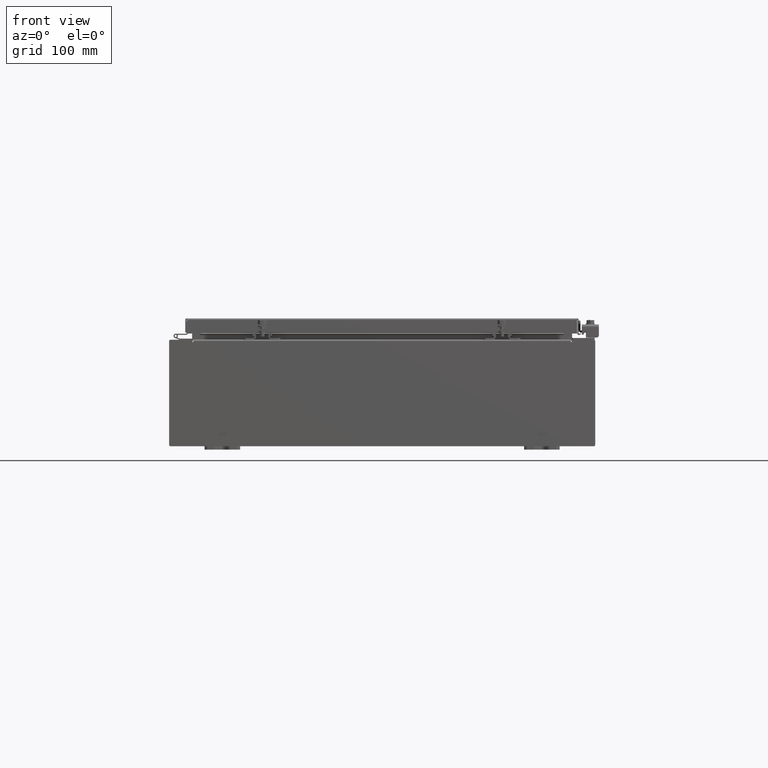
[diagram: clean part render]
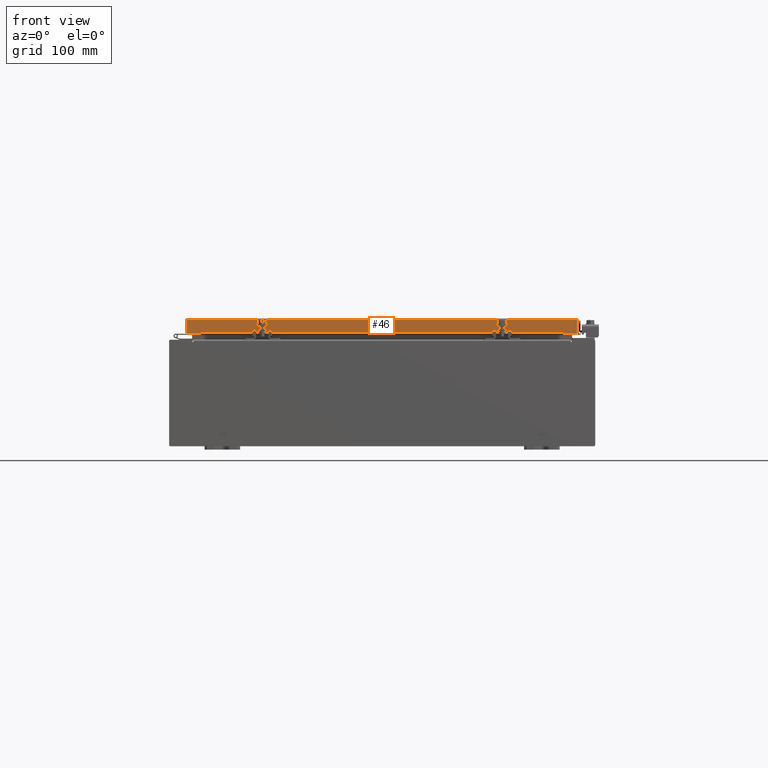
[diagram: same view with one face highlighted and labeled with its STEP entity id]
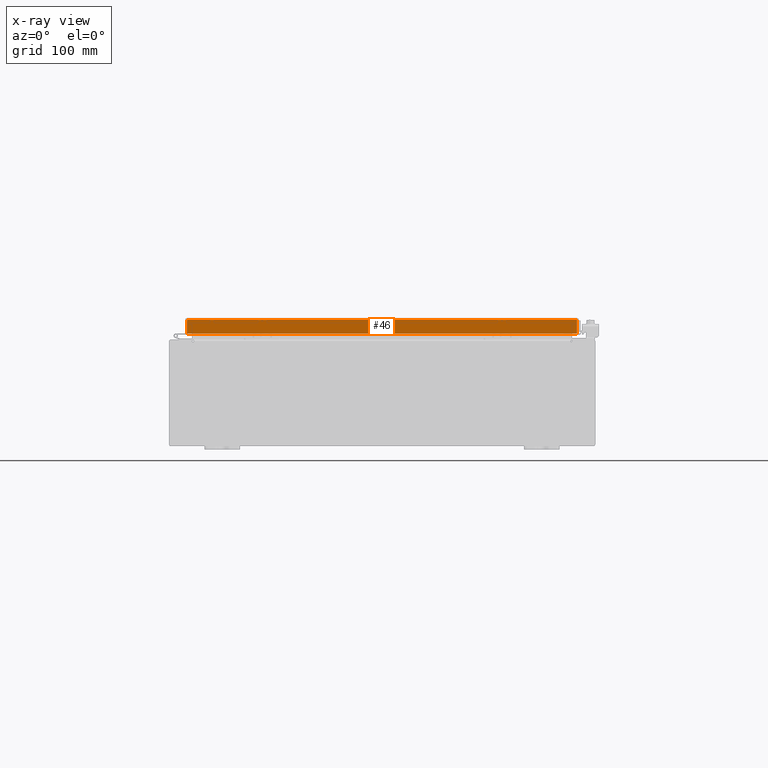
[diagram: x-ray of the same camera — body ghosted, the highlighted face saturated]
A machine part, front view. The second image highlights one B-rep face of the part: STEP entity #46.
The next image is the same camera in x-ray: the body ghosted, the highlighted face saturated — about 0% of this face is hidden behind the body in this view.
In plain terms, the highlighted planar face has unit normal (0, 1, -0).
Its self-contained STEP definition (entity closure, byte-faithful):
#46 = ADVANCED_FACE ( 'NONE', ( #12264 ), #22974, .F. ) ;
#2450 = VECTOR ( 'NONE', #29865, 39.37007874015748100 ) ;
#2663 = EDGE_CURVE ( 'NONE', #23337, #30360, #19361, .T. ) ;
#3619 = CARTESIAN_POINT ( 'NONE',  ( 11.07799999999999900, -14.09400000000000300, -0.8499999999999996400 ) ) ;
#3706 = EDGE_CURVE ( 'NONE', #23337, #24504, #10583, .T. ) ;
#4121 = VERTEX_POINT ( 'NONE', #35626 ) ;
#4392 = DIRECTION ( 'NONE',  ( 1.000000000000000000, -9.864047639155999200E-017, -9.196021172131615100E-046 ) ) ;
#4658 = CARTESIAN_POINT ( 'NONE',  ( -10.98915786437626700, -14.09399999999999900, -0.08770000000000224800 ) ) ;
#4875 = ORIENTED_EDGE ( 'NONE', *, *, #3706, .F. ) ;
#6161 = CARTESIAN_POINT ( 'NONE',  ( 10.98915786437626900, -14.09400000000000300, -0.8499999999999996400 ) ) ;
#6338 = VERTEX_POINT ( 'NONE', #18264 ) ;
#9230 = EDGE_CURVE ( 'NONE', #24504, #12584, #14075, .T. ) ;
#9518 = EDGE_CURVE ( 'NONE', #6338, #30360, #19532, .T. ) ;
#10038 = ORIENTED_EDGE ( 'NONE', *, *, #2663, .T. ) ;
#10583 = LINE ( 'NONE', #24837, #18389 ) ;
#11186 = DIRECTION ( 'NONE',  ( 0.0000000000000000000, -2.818880942772360100E-015, -1.000000000000000000 ) ) ;
#12264 = FACE_OUTER_BOUND ( 'NONE', #35199, .T. ) ;
#12584 = VERTEX_POINT ( 'NONE', #6161 ) ;
#12701 = ORIENTED_EDGE ( 'NONE', *, *, #23462, .F. ) ;
#12888 = CARTESIAN_POINT ( 'NONE',  ( 10.98915786437624400, -14.09400000000000100, -0.08770000000000224800 ) ) ;
#13148 = VECTOR ( 'NONE', #36268, 39.37007874015748100 ) ;
#13933 = DIRECTION ( 'NONE',  ( -1.000000000000000000, 9.864047639156033700E-017, 1.233005954894504400E-016 ) ) ;
#14075 = LINE ( 'NONE', #15751, #13148 ) ;
#15751 = CARTESIAN_POINT ( 'NONE',  ( 10.98915786437626900, -14.09400000000000100, -0.07469999999999978000 ) ) ;
#17237 = DIRECTION ( 'NONE',  ( 0.0000000000000000000, 2.818880942772360100E-015, 1.000000000000000000 ) ) ;
#18264 = CARTESIAN_POINT ( 'NONE',  ( -10.23915786437626700, -14.09399999999999900, -0.8500000000000012000 ) ) ;
#18389 = VECTOR ( 'NONE', #4392, 39.37007874015748100 ) ;
#18636 = VECTOR ( 'NONE', #13933, 39.37007874015748100 ) ;
#19361 = LINE ( 'NONE', #28745, #25319 ) ;
#19532 = LINE ( 'NONE', #34454, #18636 ) ;
#20974 = AXIS2_PLACEMENT_3D ( 'NONE', #25924, #34788, #17237 ) ;
#22682 = DIRECTION ( 'NONE',  ( -1.000000000000000000, 0.0000000000000000000, 0.0000000000000000000 ) ) ;
#22974 = PLANE ( 'NONE',  #20974 ) ;
#23337 = VERTEX_POINT ( 'NONE', #4658 ) ;
#23462 = EDGE_CURVE ( 'NONE', #4121, #6338, #28441, .T. ) ;
#24413 = ORIENTED_EDGE ( 'NONE', *, *, #29354, .F. ) ;
#24504 = VERTEX_POINT ( 'NONE', #12888 ) ;
#24837 = CARTESIAN_POINT ( 'NONE',  ( 11.07799999999999900, -14.09400000000000100, -0.08770000000000224800 ) ) ;
#25319 = VECTOR ( 'NONE', #11186, 39.37007874015748100 ) ;
#25777 = LINE ( 'NONE', #3619, #2450 ) ;
#25924 = CARTESIAN_POINT ( 'NONE',  ( -1.390238874262646300E-015, -14.09399999999999900, 3.999012166344521600E-014 ) ) ;
#27537 = VECTOR ( 'NONE', #22682, 39.37007874015748100 ) ;
#28441 = LINE ( 'NONE', #31449, #27537 ) ;
#28745 = CARTESIAN_POINT ( 'NONE',  ( -10.98915786437626900, -14.09399999999999900, 3.999012166344521600E-014 ) ) ;
#29354 = EDGE_CURVE ( 'NONE', #12584, #4121, #25777, .T. ) ;
#29865 = DIRECTION ( 'NONE',  ( -1.000000000000000000, 9.864047639156033700E-017, 1.233005954894504400E-016 ) ) ;
#30360 = VERTEX_POINT ( 'NONE', #34407 ) ;
#31449 = CARTESIAN_POINT ( 'NONE',  ( 10.23915786437626700, -14.09399999999999900, -0.8500000000000012000 ) ) ;
#33847 = ORIENTED_EDGE ( 'NONE', *, *, #9230, .F. ) ;
#34407 = CARTESIAN_POINT ( 'NONE',  ( -10.98915786437626700, -14.09400000000000100, -0.8499999999999969800 ) ) ;
#34454 = CARTESIAN_POINT ( 'NONE',  ( 11.07799999999999900, -14.09400000000000300, -0.8499999999999996400 ) ) ;
#34788 = DIRECTION ( 'NONE',  ( 9.864047639155998000E-017, 1.000000000000000000, -2.818880942772360100E-015 ) ) ;
#35199 = EDGE_LOOP ( 'NONE', ( #4875, #10038, #37201, #12701, #24413, #33847 ) ) ;
#35626 = CARTESIAN_POINT ( 'NONE',  ( 10.23915786437626700, -14.09399999999999900, -0.8500000000000012000 ) ) ;
#36268 = DIRECTION ( 'NONE',  ( 0.0000000000000000000, -2.818880942772360100E-015, -1.000000000000000000 ) ) ;
#37201 = ORIENTED_EDGE ( 'NONE', *, *, #9518, .F. ) ;